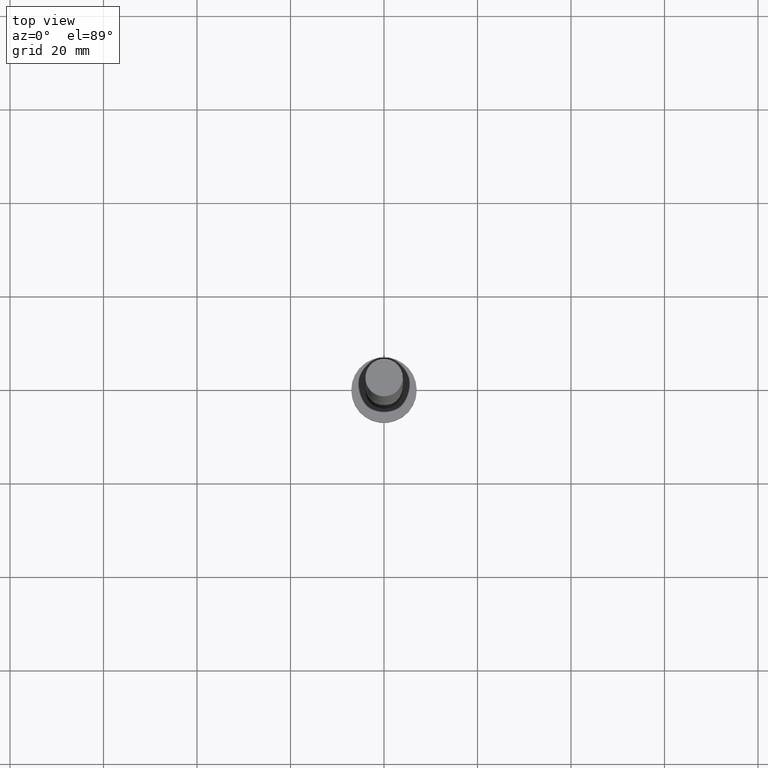
[diagram: clean part render]
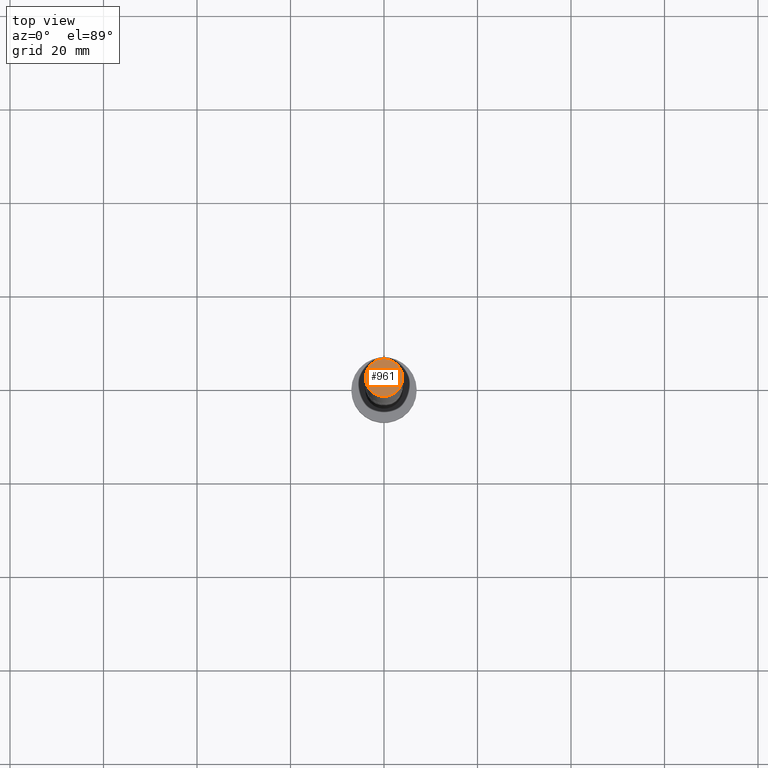
[diagram: same view with one face highlighted and labeled with its STEP entity id]
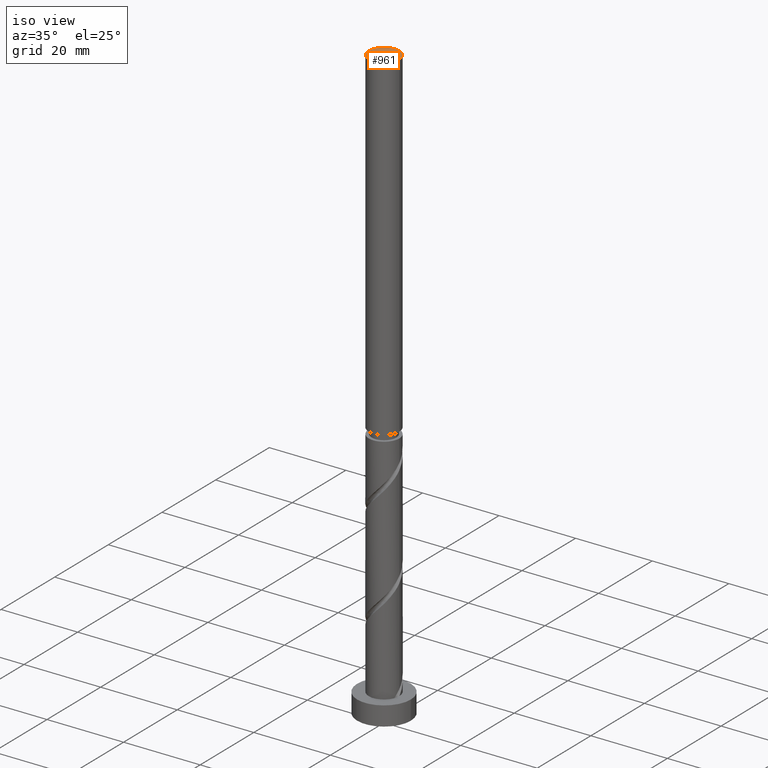
[diagram: same view with one face highlighted and labeled with its STEP entity id]
A machine part, top view. The second image highlights one B-rep face of the part: STEP entity #961.
A second angle (iso view) of the same face is appended — the face is thin or edge-on in the first view.
In plain terms, the highlighted planar face has unit normal (0, 0, 1).
Its self-contained STEP definition (entity closure, byte-faithful):
#5 = CARTESIAN_POINT ( 'NONE',  ( 0.000000000000000000, 0.000000000000000000, 155.2000000000000171 ) ) ;
#128 = DIRECTION ( 'NONE',  ( 1.000000000000000000, 0.000000000000000000, -0.000000000000000000 ) ) ;
#189 = CARTESIAN_POINT ( 'NONE',  ( 0.000000000000000000, 0.000000000000000000, 155.2000000000000171 ) ) ;
#197 = EDGE_CURVE ( 'NONE', #706, #492, #566, .T. ) ;
#268 = CARTESIAN_POINT ( 'NONE',  ( 4.000000000000000000, 4.898587196589412829E-16, 155.2000000000000171 ) ) ;
#285 = DIRECTION ( 'NONE',  ( 0.000000000000000000, 0.000000000000000000, 1.000000000000000000 ) ) ;
#290 = DIRECTION ( 'NONE',  ( 0.000000000000000000, 0.000000000000000000, 1.000000000000000000 ) ) ;
#440 = CARTESIAN_POINT ( 'NONE',  ( 0.000000000000000000, 0.000000000000000000, 155.2000000000000171 ) ) ;
#486 = CIRCLE ( 'NONE', #1841, 4.000000000000000000 ) ;
#492 = VERTEX_POINT ( 'NONE', #268 ) ;
#534 = ORIENTED_EDGE ( 'NONE', *, *, #197, .T. ) ;
#566 = CIRCLE ( 'NONE', #1681, 4.000000000000000000 ) ;
#706 = VERTEX_POINT ( 'NONE', #1733 ) ;
#913 = EDGE_LOOP ( 'NONE', ( #534, #947 ) ) ;
#947 = ORIENTED_EDGE ( 'NONE', *, *, #1264, .T. ) ;
#956 = AXIS2_PLACEMENT_3D ( 'NONE', #440, #285, #128 ) ;
#961 = ADVANCED_FACE ( 'NONE', ( #1500 ), #1078, .T. ) ;
#963 = DIRECTION ( 'NONE',  ( 1.000000000000000000, 0.000000000000000000, 0.000000000000000000 ) ) ;
#1078 = PLANE ( 'NONE',  #956 ) ;
#1264 = EDGE_CURVE ( 'NONE', #492, #706, #486, .T. ) ;
#1500 = FACE_OUTER_BOUND ( 'NONE', #913, .T. ) ;
#1529 = DIRECTION ( 'NONE',  ( 1.000000000000000000, 0.000000000000000000, 0.000000000000000000 ) ) ;
#1579 = DIRECTION ( 'NONE',  ( 0.000000000000000000, 0.000000000000000000, 1.000000000000000000 ) ) ;
#1681 = AXIS2_PLACEMENT_3D ( 'NONE', #5, #290, #1529 ) ;
#1733 = CARTESIAN_POINT ( 'NONE',  ( -4.000000000000000000, 0.000000000000000000, 155.2000000000000171 ) ) ;
#1841 = AXIS2_PLACEMENT_3D ( 'NONE', #189, #1579, #963 ) ;